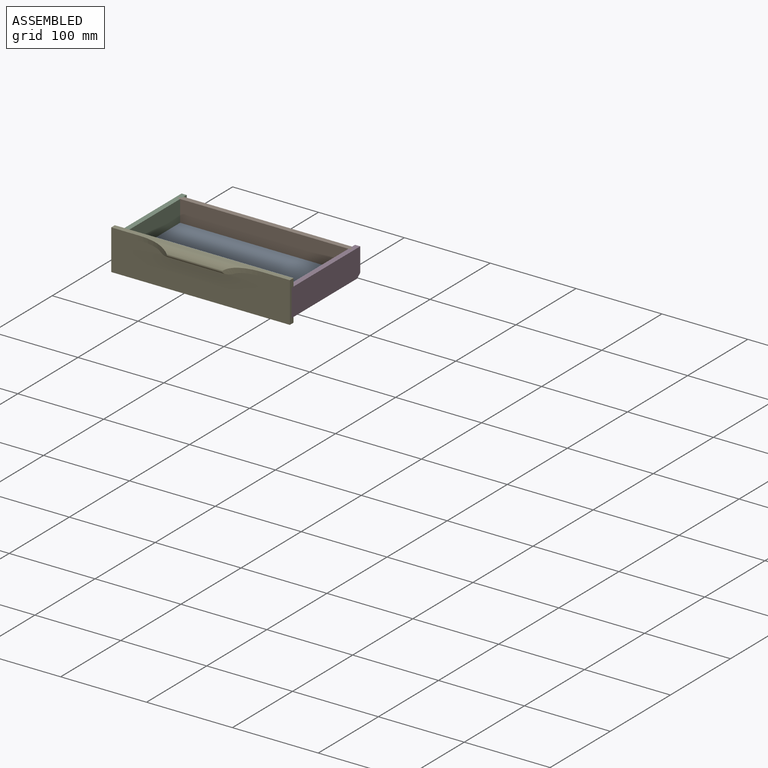
[diagram: assembled view]
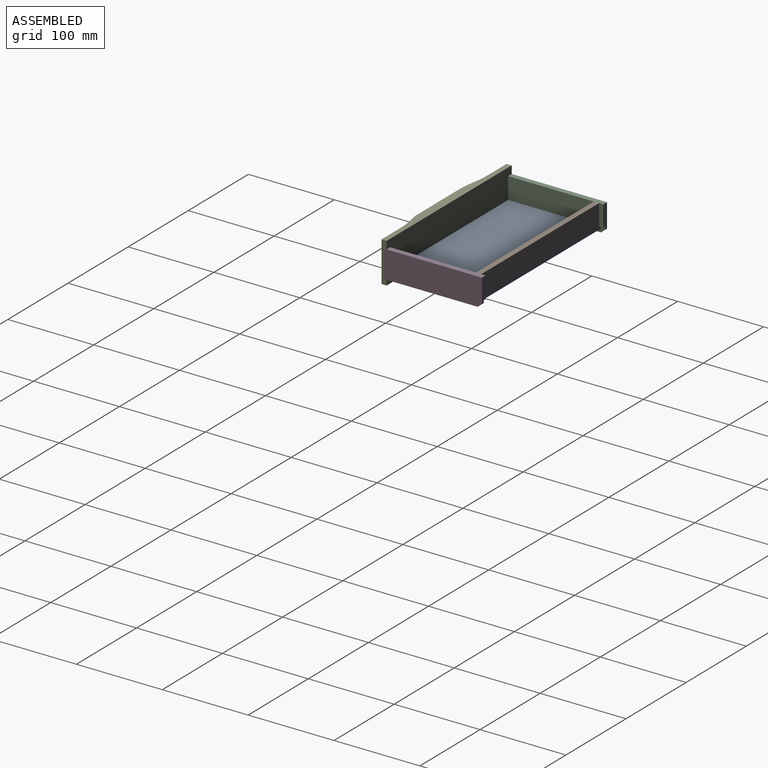
[diagram: assembled view, second angle]
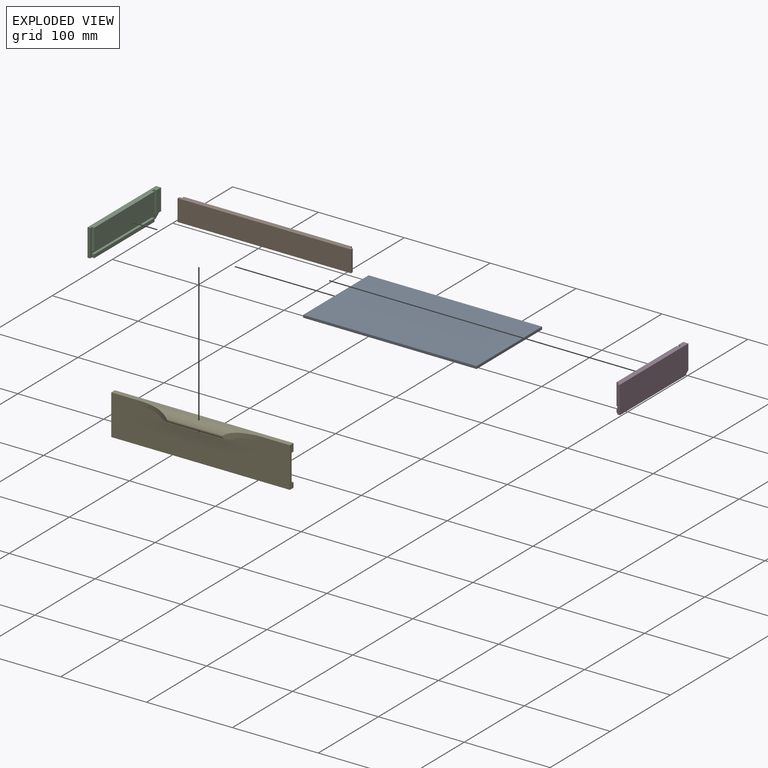
[diagram: exploded view]
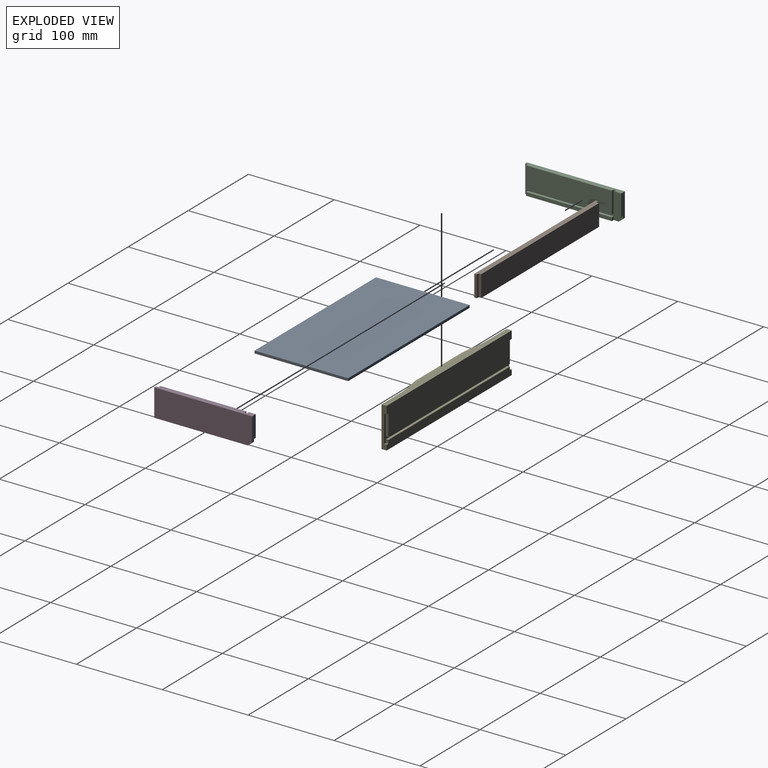
[diagram: exploded view, second angle]
ASSEMBLY  parts=5 mates=4
PART A: 6 faces, bbox 202x109x3 mm
  f0: plane 202x3mm, normal (0,-1,0), area 606mm2, adj f1,f3,f4,f5
  f1: plane 109x3mm, normal (1,0,0), area 327mm2, adj f0,f2,f4,f5
  f2: plane 202x3mm, normal (0,1,0), area 606mm2, adj f1,f3,f4,f5
  f3: plane 109x3mm, normal (-1,0,0), area 327mm2, adj f0,f2,f4,f5
  f4: plane 202x109mm, normal (0,0,1), area 22018mm2, adj f0,f1,f2,f3
  f5: plane 202x109mm, normal (0,0,-1), area 22018mm2, adj f0,f1,f2,f3
PART B: 10 faces, bbox 202x6x25 mm
  f0: plane 202x25mm, normal (0,-1,0), area 5050mm2, adj f1,f7,f8,f9
  f1: plane 25x3mm, normal (1,0,0), area 75mm2, adj f0,f2,f8,f9
  f2: plane 25x3mm, normal (0,1,0), area 75mm2, adj f1,f3,f8,f9
  f3: plane 25x3mm, normal (1,0,0), area 75mm2, adj f2,f4,f8,f9
  f4: plane 196x25mm, normal (0,1,0), area 4900mm2, adj f3,f5,f8,f9
  f5: plane 25x3mm, normal (-1,0,0), area 75mm2, adj f4,f6,f8,f9
  f6: plane 25x3mm, normal (0,1,0), area 75mm2, adj f5,f7,f8,f9
  f7: plane 25x3mm, normal (-1,0,0), area 75mm2, adj f0,f6,f8,f9
  f8: plane 202x6mm, normal (0,0,-1), area 1194mm2, adj f0,f1,f2,f3,f4,f5,f6,f7
  f9: plane 202x6mm, normal (0,0,1), area 1194mm2, adj f0,f1,f2,f3,f4,f5,f6,f7
PART C: 18 faces, bbox 6x114x32 mm
  f0: plane 28x6mm, normal (0,1,0), area 159mm2, adj f2,f7,f9,f12,f14,f17
  f1: plane 109x6mm, normal (0,0,-1), area 627mm2, adj f2,f3,f4,f5,f6,f12,f17
  f2: plane 114x32mm, normal (-1,0,0), area 3638mm2, adj f0,f1,f6,f9,f17
  f3: plane 100x4mm, normal (1,0,0), area 400mm2, adj f1,f4,f5,f15
  f4: plane 4x3mm, normal (0,-1,0), area 12mm2, adj f1,f3,f12,f15
  f5: plane 4x3mm, normal (0,1,0), area 12mm2, adj f1,f3,f12,f15
  f6: plane 32x3mm, normal (0,-1,0), area 96mm2, adj f1,f2,f9,f12
  f7: plane 25x8mm, normal (1,0,0), area 200mm2, adj f0,f9,f11,f14
  f8: plane 100x25mm, normal (1,0,0), area 2500mm2, adj f9,f10,f13,f16
  f9: plane 114x6mm, normal (0,0,1), area 666mm2, adj f0,f2,f6,f7,f8,f10,f11,f12
  f10: plane 25x3mm, normal (0,-1,0), area 75mm2, adj f8,f9,f12,f16
  f11: plane 25x3mm, normal (0,-1,0), area 75mm2, adj f7,f9,f12,f14
  f12: plane 114x32mm, normal (1,0,0), area 538mm2, adj f0,f1,f4,f5,f6,f9,f10,f11
  f13: plane 25x3mm, normal (0,1,0), area 75mm2, adj f8,f9,f12,f16
  f14: plane 8x3mm, normal (0,0,-1), area 24mm2, adj f0,f7,f11,f12
  f15: plane 100x3mm, normal (0,0,1), area 300mm2, adj f3,f4,f5,f12
  f16: plane 100x3mm, normal (0,0,-1), area 300mm2, adj f8,f10,f12,f13
  f17: plane 5x4mm, normal (0,0.62,-0.78), area 19.2mm2, adj f0,f1,f2,f12
PART D: 18 faces, bbox 6x114x32 mm
  f0: plane 28x6mm, normal (0,1,0), area 159mm2, adj f2,f7,f9,f12,f14,f17
  f1: plane 109x6mm, normal (0,0,-1), area 627mm2, adj f2,f3,f4,f5,f6,f12,f17
  f2: plane 114x32mm, normal (1,0,0), area 3638mm2, adj f0,f1,f6,f9,f17
  f3: plane 100x4mm, normal (-1,0,0), area 400mm2, adj f1,f4,f5,f15
  f4: plane 4x3mm, normal (0,-1,0), area 12mm2, adj f1,f3,f12,f15
  f5: plane 4x3mm, normal (0,1,0), area 12mm2, adj f1,f3,f12,f15
  f6: plane 32x3mm, normal (0,-1,0), area 96mm2, adj f1,f2,f9,f12
  f7: plane 25x8mm, normal (-1,0,0), area 200mm2, adj f0,f9,f11,f14
  f8: plane 100x25mm, normal (-1,0,0), area 2500mm2, adj f9,f10,f13,f16
  f9: plane 114x6mm, normal (0,0,1), area 666mm2, adj f0,f2,f6,f7,f8,f10,f11,f12
  f10: plane 25x3mm, normal (0,-1,0), area 75mm2, adj f8,f9,f12,f16
  f11: plane 25x3mm, normal (0,-1,0), area 75mm2, adj f7,f9,f12,f14
  f12: plane 114x32mm, normal (-1,0,0), area 538mm2, adj f0,f1,f4,f5,f6,f9,f10,f11
  f13: plane 25x3mm, normal (0,1,0), area 75mm2, adj f8,f9,f12,f16
  f14: plane 8x3mm, normal (0,0,-1), area 24mm2, adj f0,f7,f11,f12
  f15: plane 100x3mm, normal (0,0,1), area 300mm2, adj f3,f4,f5,f12
  f16: plane 100x3mm, normal (0,0,-1), area 300mm2, adj f8,f10,f12,f13
  f17: plane 5x4mm, normal (0,0.62,-0.78), area 19.2mm2, adj f0,f1,f2,f12
PART E: 23 faces, bbox 208x16x47 mm
  f0: plane 4x3mm, normal (1,0,0), area 12mm2, adj f12,f16,f18,f21
  f1: plane 25x3mm, normal (1,0,0), area 75mm2, adj f2,f17,f18,f22
  f2: plane 208x34mm, normal (0,1,0), area 6922mm2, adj f1,f4,f5,f6,f13,f17,f20,f22
  f3: plane 4x3mm, normal (-1,0,0), area 12mm2, adj f12,f18,f19,f21
  f4: plane 25x3mm, normal (-1,0,0), area 75mm2, adj f2,f18,f20,f22
  f5: plane 47x6mm, normal (-1,0,0), area 186mm2, adj f2,f10,f11,f12,f13,f18,f19,f20
  f6: plane 47x6mm, normal (1,0,0), area 186mm2, adj f2,f10,f11,f12,f13,f16,f17,f18
  f7: cylinder r=11.71mm len=144.44mm, axis (1,0,0), area 998.8mm2, adj f8,f13,f14,f15
  f8: cylinder r=2.5mm len=84.37mm, axis (1,0,0), area 557mm2, adj f7,f9,f14,f15
  f9: cylinder r=6.71mm len=144.44mm, axis (1,0,0), area 656.4mm2, adj f8,f11,f14,f15
  f10: plane 208x6mm, normal (0,0,-1), area 1248mm2, adj f5,f6,f11,f12
  f11: plane 208x47mm, normal (0,-1,0), area 9053.8mm2, adj f5,f6,f9,f10,f13,f14,f15
  f12: plane 208x10mm, normal (0,1,0), area 2056mm2, adj f0,f3,f5,f6,f10,f16,f19,f21
  f13: plane 208x6mm, normal (0,0,1), area 1248mm2, adj f2,f5,f6,f7,f11
  f14: cylinder r=85mm len=40.05mm, axis (0,0,1), area 220.8mm2, adj f7,f8,f9,f11
  f15: cylinder r=85mm len=40.05mm, axis (0,0,1), area 220.8mm2, adj f7,f8,f9,f11
  f16: plane 3x3mm, normal (0,0,1), area 9mm2, adj f0,f6,f12,f18
  f17: plane 3x3mm, normal (0,0,-1), area 9mm2, adj f1,f2,f6,f18
  f18: plane 208x32mm, normal (0,1,0), area 798mm2, adj f0,f1,f3,f4,f5,f6,f16,f17
  f19: plane 3x3mm, normal (0,0,1), area 9mm2, adj f3,f5,f12,f18
  f20: plane 3x3mm, normal (0,0,-1), area 9mm2, adj f2,f4,f5,f18
  f21: plane 202x3mm, normal (0,0,1), area 606mm2, adj f0,f3,f12,f18
  f22: plane 202x3mm, normal (0,0,-1), area 606mm2, adj f1,f2,f4,f18
PLACE A t=(37.81,-40,17.7)mm
PLACE B t=(37.63,-80.68,28.7)mm
PLACE C t=(43.74,-80.68,28.7)mm
PLACE D t=(31.74,-80.68,28.7)mm
PLACE E t=(37.74,-29.6,28.7)mm
MATE fastened C.f2 <-> E.f5  axis (-1,0,0) through (-66.26,-32.6,45.7)mm
MATE fastened C.f9 <-> B.f9  axis (0,0,1) through (-63.26,70.4,45.7)mm
MATE fastened D.f2 <-> E.f6  axis (1,0,0) through (141.74,-32.6,45.7)mm
MATE fastened A.f1 <-> E.f0  axis (1,0,0) through (138.74,-32.6,17.7)mm
